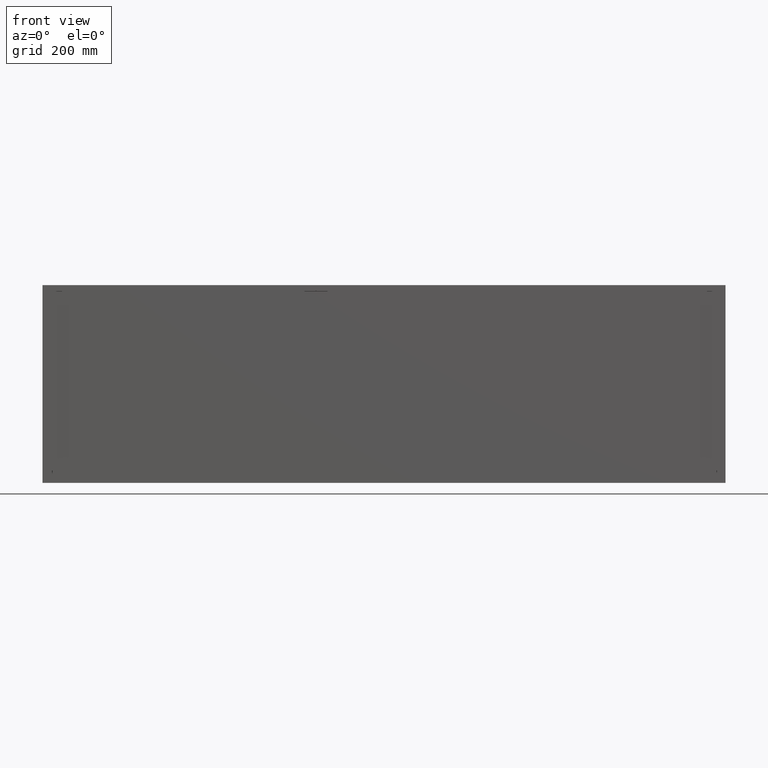
[diagram: clean part render]
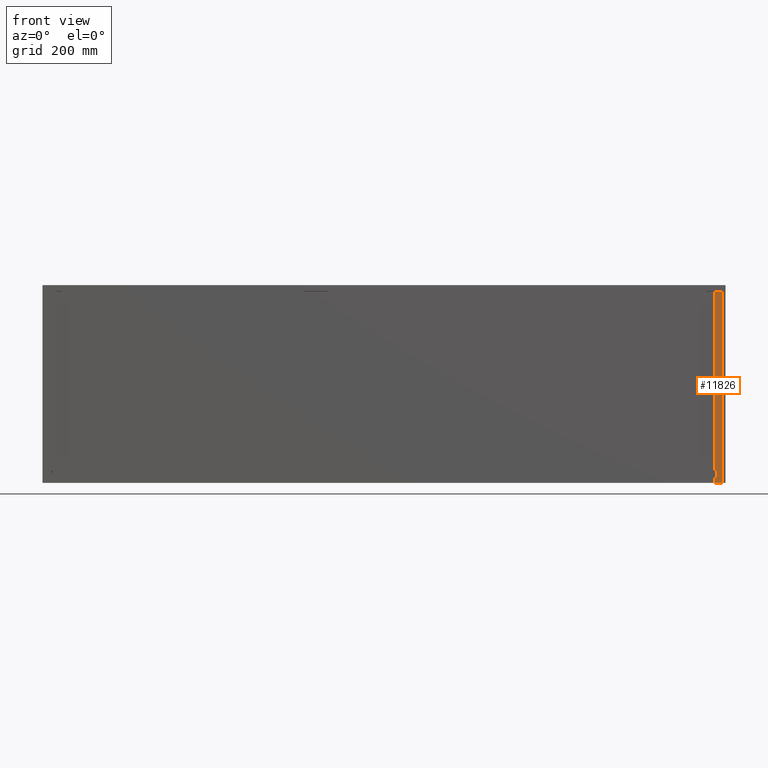
[diagram: same view with one face highlighted and labeled with its STEP entity id]
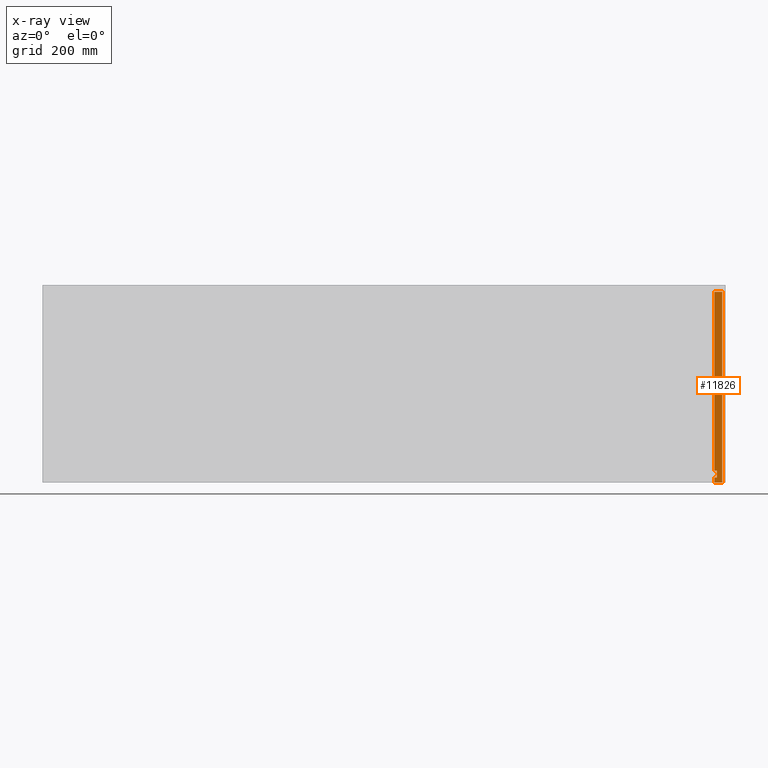
[diagram: x-ray of the same camera — body ghosted, the highlighted face saturated]
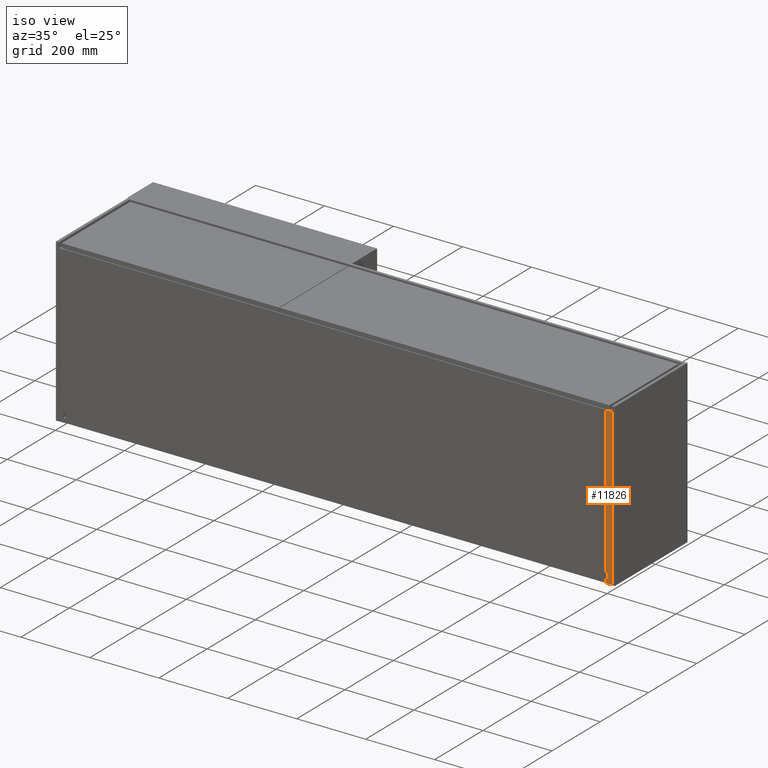
[diagram: same view with one face highlighted and labeled with its STEP entity id]
A machine part, front view. The second image highlights one B-rep face of the part: STEP entity #11826.
The next image is the same camera in x-ray: the body ghosted, the highlighted face saturated — about 0% of this face is hidden behind the body in this view.
A second angle (iso view) of the same face is appended — the face is thin or edge-on in the first view.
In plain terms, the highlighted planar face has unit normal (0, 1, 0).
Its self-contained STEP definition (entity closure, byte-faithful):
#55 = DIRECTION ( 'NONE',  ( 1.540743955509788682E-33, 1.000000000000000000, 1.134733849108654086E-31 ) ) ;
#273 = VECTOR ( 'NONE', #8158, 1000.000000000000000 ) ;
#351 = DIRECTION ( 'NONE',  ( 1.000000000000000000, 1.540743955509788340E-33, -2.168404344971008387E-19 ) ) ;
#662 = EDGE_CURVE ( 'NONE', #10450, #15997, #6570, .T. ) ;
#1132 = CARTESIAN_POINT ( 'NONE',  ( 1615.000000000000000, 0.0000000000000000000, -470.0000000000001137 ) ) ;
#1204 = CARTESIAN_POINT ( 'NONE',  ( 1596.000000000000000, 0.0000000000000000000, -470.0000000000000568 ) ) ;
#1278 = FACE_OUTER_BOUND ( 'NONE', #15676, .T. ) ;
#1497 = CARTESIAN_POINT ( 'NONE',  ( 1602.000000000000000, 0.0000000000000000000, -457.5000000000001705 ) ) ;
#1522 = VERTEX_POINT ( 'NONE', #1132 ) ;
#1653 = VERTEX_POINT ( 'NONE', #13845 ) ;
#2169 = CARTESIAN_POINT ( 'NONE',  ( 1596.000000000000000, 0.0000000000000000000, -457.5000000000001705 ) ) ;
#2852 = CARTESIAN_POINT ( 'NONE',  ( 1602.000000000000000, 0.0000000000000000000, -440.5000000000001137 ) ) ;
#3172 = CARTESIAN_POINT ( 'NONE',  ( 1596.000000000000000, 0.0000000000000000000, -470.0000000000000568 ) ) ;
#3256 = DIRECTION ( 'NONE',  ( -1.000000000000000000, -1.540743955509788340E-33, 2.168404344971008387E-19 ) ) ;
#3483 = CARTESIAN_POINT ( 'NONE',  ( 1615.000000000000000, 0.0000000000000000000, -15.99999999999993072 ) ) ;
#3510 = VECTOR ( 'NONE', #6488, 1000.000000000000000 ) ;
#3556 = VERTEX_POINT ( 'NONE', #7752 ) ;
#3601 = EDGE_CURVE ( 'NONE', #3556, #10450, #14349, .T. ) ;
#3619 = EDGE_CURVE ( 'NONE', #1522, #12753, #5719, .T. ) ;
#3624 = DIRECTION ( 'NONE',  ( 2.168404344971008387E-19, 1.627786961199476990E-31, -1.000000000000000000 ) ) ;
#3635 = ORIENTED_EDGE ( 'NONE', *, *, #3601, .F. ) ;
#3736 = VECTOR ( 'NONE', #7840, 1000.000000000000000 ) ;
#4300 = CARTESIAN_POINT ( 'NONE',  ( 1602.000000000000000, 0.0000000000000000000, -457.5000000000001705 ) ) ;
#4330 = EDGE_CURVE ( 'NONE', #15997, #1522, #9819, .T. ) ;
#4385 = VERTEX_POINT ( 'NONE', #13631 ) ;
#4636 = ORIENTED_EDGE ( 'NONE', *, *, #4330, .F. ) ;
#5057 = DIRECTION ( 'NONE',  ( -2.168404344971007905E-19, -1.134733849108654086E-31, 1.000000000000000000 ) ) ;
#5719 = LINE ( 'NONE', #14430, #11250 ) ;
#6203 = DIRECTION ( 'NONE',  ( -2.168404344971008387E-19, -1.627786961199476990E-31, 1.000000000000000000 ) ) ;
#6271 = PLANE ( 'NONE',  #10020 ) ;
#6413 = ORIENTED_EDGE ( 'NONE', *, *, #3619, .F. ) ;
#6488 = DIRECTION ( 'NONE',  ( -1.000000000000000000, -1.540743955509788340E-33, 2.168404344971008387E-19 ) ) ;
#6570 = LINE ( 'NONE', #11523, #14598 ) ;
#7308 = EDGE_CURVE ( 'NONE', #1653, #3556, #14013, .T. ) ;
#7752 = CARTESIAN_POINT ( 'NONE',  ( 1596.000000000000000, 0.0000000000000000000, -440.5000000000001137 ) ) ;
#7803 = VECTOR ( 'NONE', #3624, 1000.000000000000000 ) ;
#7840 = DIRECTION ( 'NONE',  ( -1.000000000000000000, -1.540743955509788340E-33, 2.168404344971008387E-19 ) ) ;
#8158 = DIRECTION ( 'NONE',  ( -2.168404344971008387E-19, -1.627786961199476990E-31, 1.000000000000000000 ) ) ;
#9243 = VECTOR ( 'NONE', #9264, 1000.000000000000000 ) ;
#9264 = DIRECTION ( 'NONE',  ( -2.168404344971007905E-19, -1.134733849108654086E-31, 1.000000000000000000 ) ) ;
#9648 = EDGE_CURVE ( 'NONE', #12753, #11053, #12380, .T. ) ;
#9819 = LINE ( 'NONE', #14784, #7803 ) ;
#10020 = AXIS2_PLACEMENT_3D ( 'NONE', #11231, #55, #5057 ) ;
#10450 = VERTEX_POINT ( 'NONE', #10640 ) ;
#10640 = CARTESIAN_POINT ( 'NONE',  ( 1596.000000000000000, 0.0000000000000000000, -15.99999999999993072 ) ) ;
#11053 = VERTEX_POINT ( 'NONE', #2169 ) ;
#11231 = CARTESIAN_POINT ( 'NONE',  ( -4.440892098500626162E-13, 0.0000000000000000000, 8.326672684688674053E-14 ) ) ;
#11250 = VECTOR ( 'NONE', #3256, 1000.000000000000000 ) ;
#11523 = CARTESIAN_POINT ( 'NONE',  ( 1596.000000000000000, 0.0000000000000000000, -15.99999999999993072 ) ) ;
#11763 = ORIENTED_EDGE ( 'NONE', *, *, #7308, .F. ) ;
#11826 = ADVANCED_FACE ( 'NONE', ( #1278 ), #6271, .F. ) ;
#12155 = EDGE_CURVE ( 'NONE', #4385, #11053, #12669, .T. ) ;
#12246 = ORIENTED_EDGE ( 'NONE', *, *, #13041, .F. ) ;
#12380 = LINE ( 'NONE', #1204, #14662 ) ;
#12669 = LINE ( 'NONE', #1497, #3510 ) ;
#12753 = VERTEX_POINT ( 'NONE', #13696 ) ;
#13041 = EDGE_CURVE ( 'NONE', #4385, #1653, #15448, .T. ) ;
#13631 = CARTESIAN_POINT ( 'NONE',  ( 1602.000000000000000, 0.0000000000000000000, -457.5000000000001705 ) ) ;
#13633 = ORIENTED_EDGE ( 'NONE', *, *, #12155, .T. ) ;
#13696 = CARTESIAN_POINT ( 'NONE',  ( 1596.000000000000000, 0.0000000000000000000, -470.0000000000000568 ) ) ;
#13845 = CARTESIAN_POINT ( 'NONE',  ( 1602.000000000000000, 0.0000000000000000000, -440.5000000000001137 ) ) ;
#13978 = ORIENTED_EDGE ( 'NONE', *, *, #662, .F. ) ;
#14013 = LINE ( 'NONE', #2852, #3736 ) ;
#14349 = LINE ( 'NONE', #3172, #273 ) ;
#14430 = CARTESIAN_POINT ( 'NONE',  ( 1615.000000000000000, 0.0000000000000000000, -470.0000000000001137 ) ) ;
#14598 = VECTOR ( 'NONE', #351, 1000.000000000000000 ) ;
#14658 = ORIENTED_EDGE ( 'NONE', *, *, #9648, .F. ) ;
#14662 = VECTOR ( 'NONE', #6203, 1000.000000000000000 ) ;
#14784 = CARTESIAN_POINT ( 'NONE',  ( 1615.000000000000000, 0.0000000000000000000, -15.99999999999993072 ) ) ;
#15448 = LINE ( 'NONE', #4300, #9243 ) ;
#15676 = EDGE_LOOP ( 'NONE', ( #12246, #13633, #14658, #6413, #4636, #13978, #3635, #11763 ) ) ;
#15997 = VERTEX_POINT ( 'NONE', #3483 ) ;